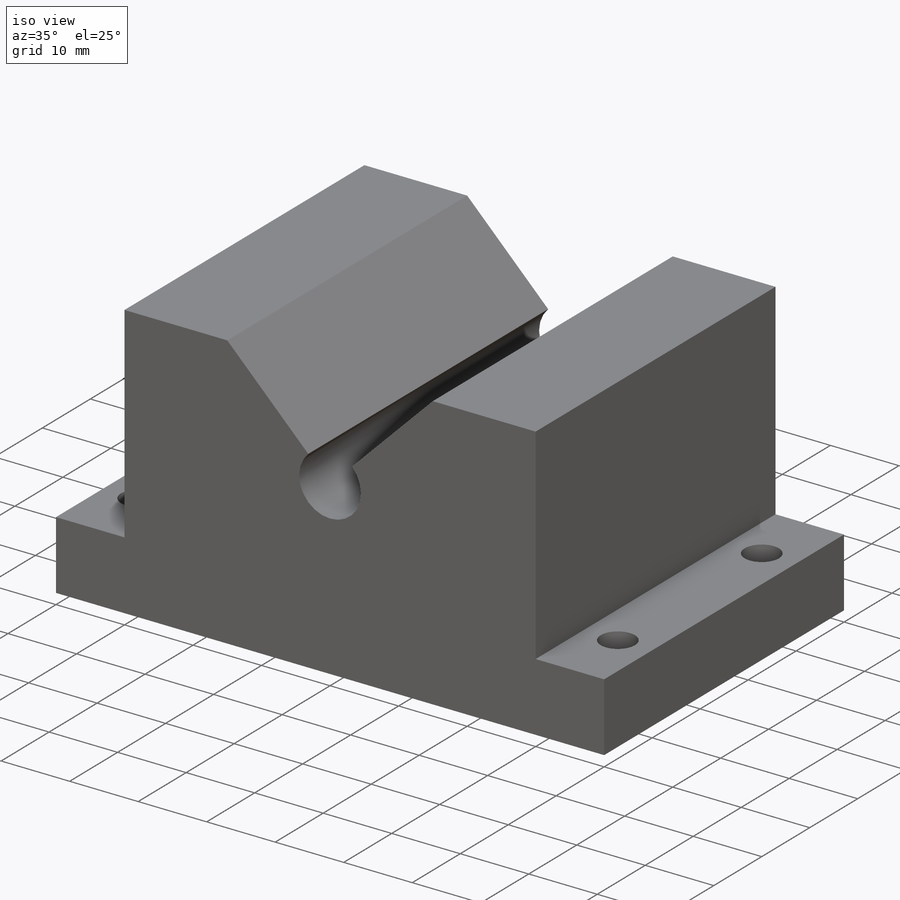
[diagram: iso view]
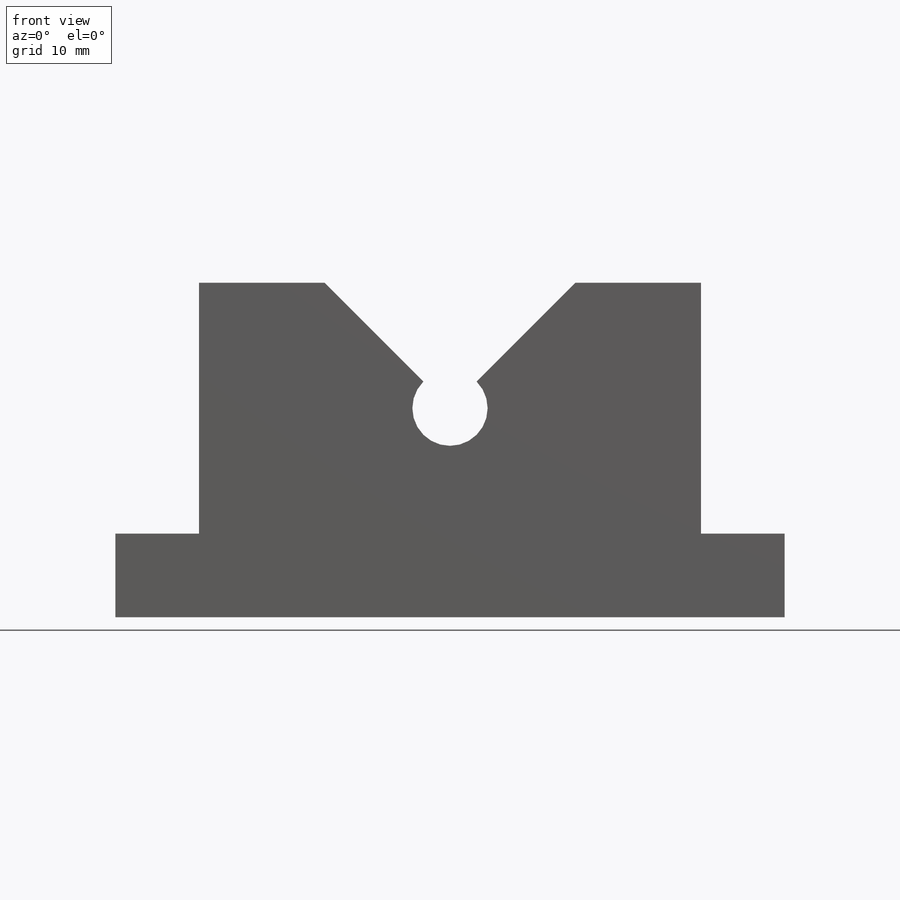
[diagram: front view]
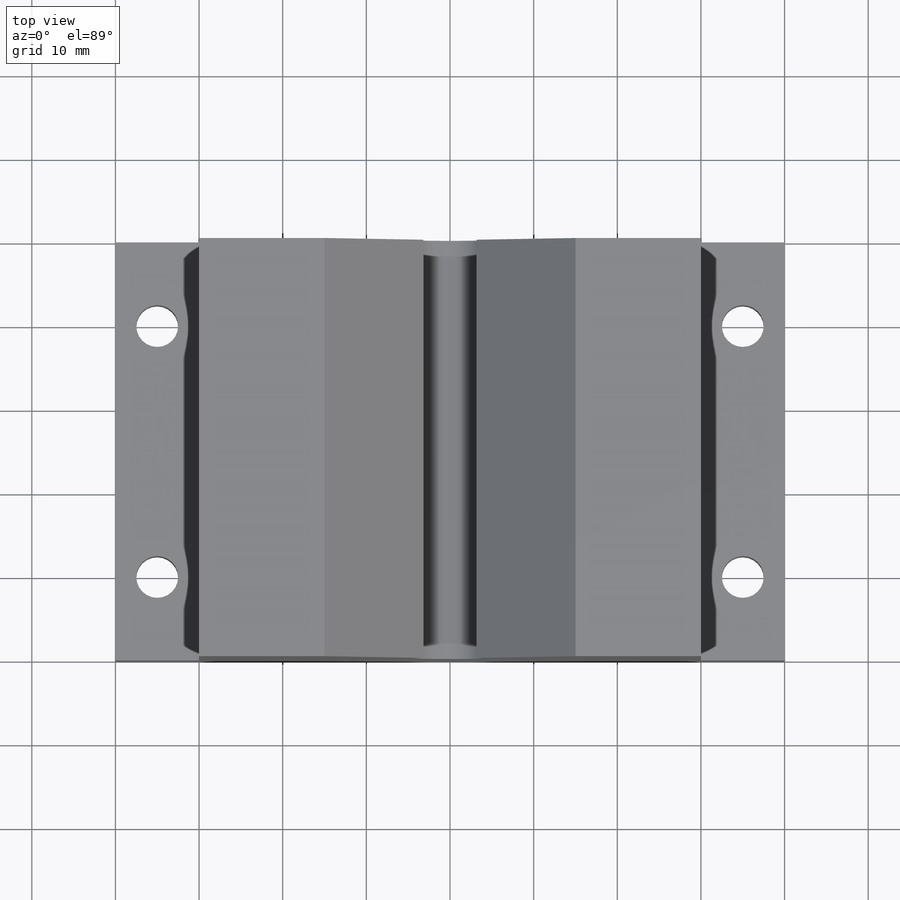
[diagram: top view]
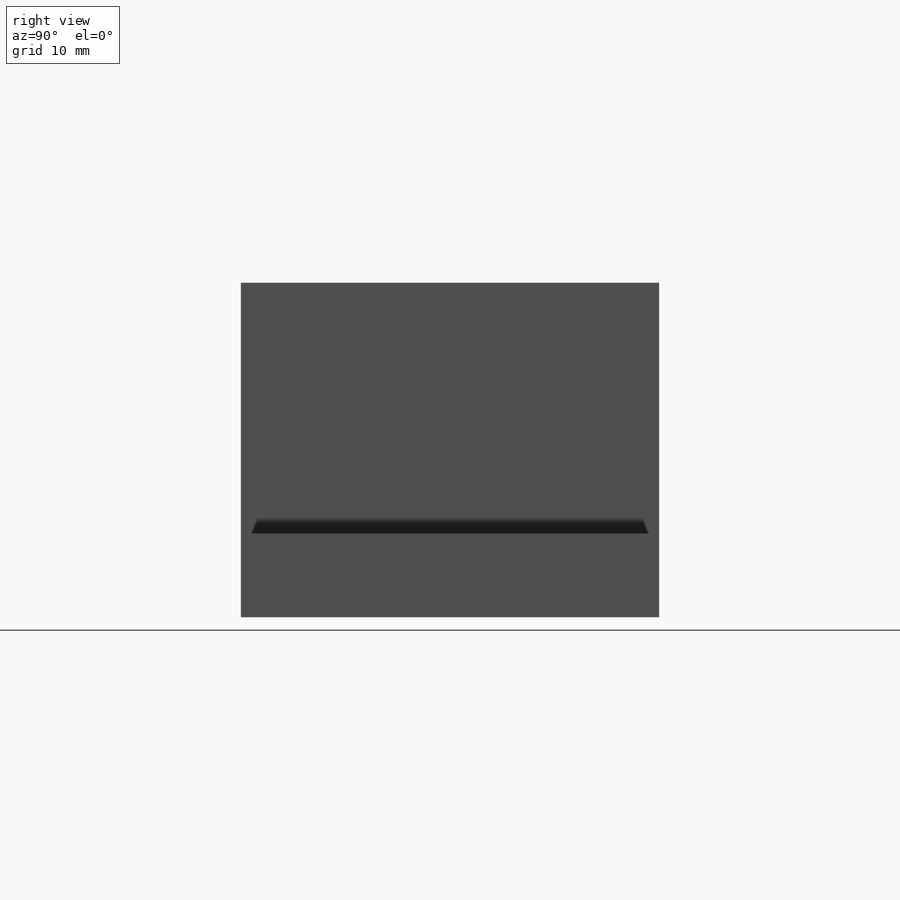
[diagram: right view]
SOLIDWORKS PART (.sldprt)
format: sldprt  version: not decoded by parser v0  size: 231,424 bytes
history: native  units: mm
features: sketch x4, plane x3, cut_extrude x3, material x1, extrude x1 + 3 further entries (+7 scaffold rows collapsed)
feature tree (22):
  scaffold x7  (default folders/planes/origin — collapsed)
  material  "재질 <지정안함>"
  "곡면 바디"
  "솔리드 바디"
  plane  "정면"
  plane  "윗면"
  plane  "우측면"
  "원점"
  sketch  "스케치4"  dims[D1=40.0mm D2=40.0mm D3=60.0mm D4=10.0mm D5=10.0mm D6=10.0mm D7=30.0mm D8=30.0mm]
  extrude  "보스-돌출1"  Depth=50mm
  sketch  "스케치5"  dims[c1.D1=40.0mm c1.D2=15.0mm c1.D3=~21.213203mm c2.D3=45.0deg c2.D4=~20.280698mm c3.D4=45.0deg c3.D5=15.0mm c3.D6=30.0mm]
  cut_extrude  "컷-돌출1"  Depth=97mm
  sketch  "스케치6"  dims[c1.D1=~7.926902mm c2.D1=5.0mm c2.D2=~8.139762mm c3.D2=~8.139762mm c4.D2=5.0mm c4.D1=5.0mm c4.D3=30.0mm c4.D4=10.0mm]
  cut_extrude  "컷-돌출2"  Depth=97mm
  sketch  "스케치7"  dims[D1=5.0mm D2=5.0mm D3=30.0mm D4=10.0mm]
  cut_extrude  "컷-돌출3"  Depth=97mm
decode coverage: 8 of 8 modeling features carry decoded parameters; 3 rows unclassified (native names shown)
note: ~ marks probable driven/reference dimensions
note: suppression state not decoded; provenance and decode notes live in map.json
